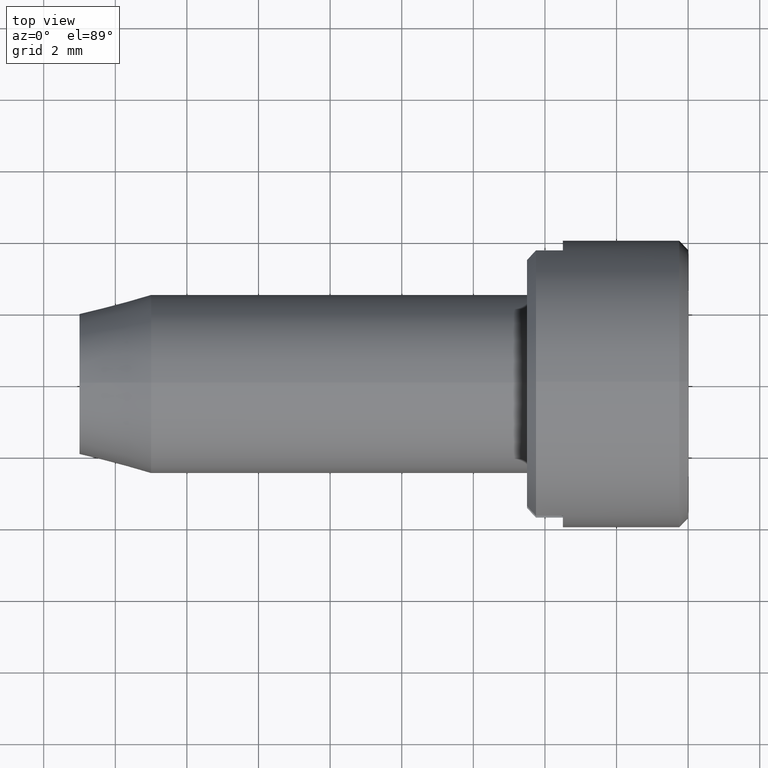
[diagram: clean part render]
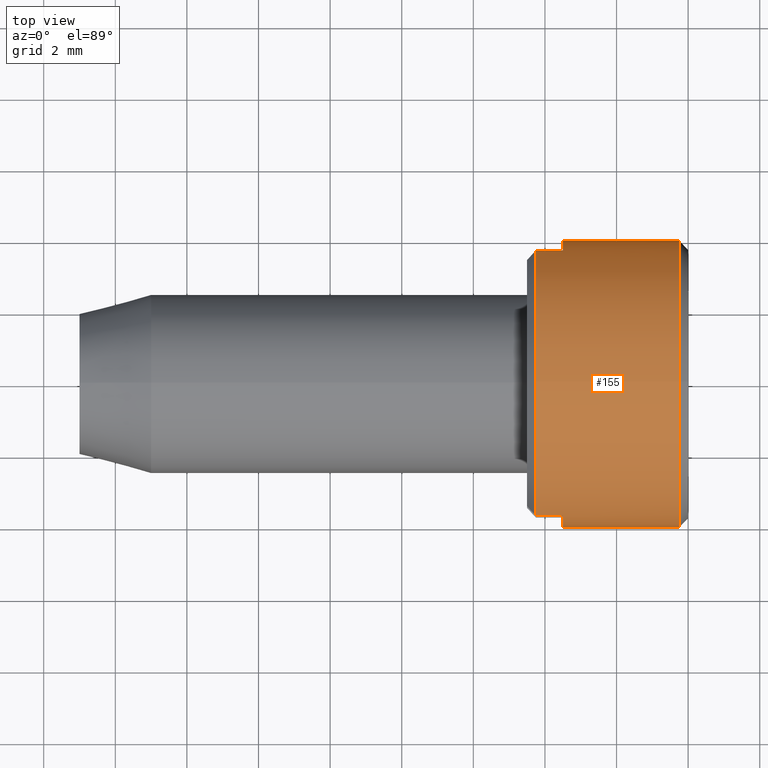
[diagram: same view with one face highlighted and labeled with its STEP entity id]
A machine part, top view. The second image highlights one B-rep face of the part: STEP entity #155.
In plain terms, the highlighted cylindrical surface (bore or boss wall) has radius 4 mm, axis along (1, 0, 0).
Its self-contained STEP definition (entity closure, byte-faithful):
#155 = ADVANCED_FACE( '', ( #280, #281 ), #282, .T. );
#280 = FACE_OUTER_BOUND( '', #414, .T. );
#281 = FACE_OUTER_BOUND( '', #415, .T. );
#282 = CYLINDRICAL_SURFACE( '', #416, 4.00000000000000 );
#414 = EDGE_LOOP( '', ( #565 ) );
#415 = EDGE_LOOP( '', ( #566, #567, #568, #569, #570, #571, #572, #573 ) );
#416 = AXIS2_PLACEMENT_3D( '', #574, #575, #576 );
#565 = ORIENTED_EDGE( '', *, *, #751, .T. );
#566 = ORIENTED_EDGE( '', *, *, #747, .F. );
#567 = ORIENTED_EDGE( '', *, *, #771, .T. );
#568 = ORIENTED_EDGE( '', *, *, #772, .F. );
#569 = ORIENTED_EDGE( '', *, *, #773, .T. );
#570 = ORIENTED_EDGE( '', *, *, #774, .F. );
#571 = ORIENTED_EDGE( '', *, *, #775, .T. );
#572 = ORIENTED_EDGE( '', *, *, #767, .F. );
#573 = ORIENTED_EDGE( '', *, *, #776, .T. );
#574 = CARTESIAN_POINT( '', ( -60.0000000000000, 0.000000000000000, 0.000000000000000 ) );
#575 = DIRECTION( '', ( 1.00000000000000, -0.000000000000000, -0.000000000000000 ) );
#576 = DIRECTION( '', ( 0.000000000000000, 0.000000000000000, 1.00000000000000 ) );
#747 = EDGE_CURVE( '', #832, #834, #835, .F. );
#751 = EDGE_CURVE( '', #840, #840, #841, .T. );
#767 = EDGE_CURVE( '', #865, #867, #868, .T. );
#771 = EDGE_CURVE( '', #832, #873, #874, .T. );
#772 = EDGE_CURVE( '', #875, #873, #876, .T. );
#773 = EDGE_CURVE( '', #875, #877, #878, .T. );
#774 = EDGE_CURVE( '', #879, #877, #880, .F. );
#775 = EDGE_CURVE( '', #879, #867, #881, .T. );
#776 = EDGE_CURVE( '', #865, #834, #882, .T. );
#832 = VERTEX_POINT( '', #957 );
#834 = VERTEX_POINT( '', #962 );
#835 = LINE( '', #963, #964 );
#840 = VERTEX_POINT( '', #970 );
#841 = CIRCLE( '', #971, 4.00000000000000 );
#865 = VERTEX_POINT( '', #997 );
#867 = VERTEX_POINT( '', #1000 );
#868 = LINE( '', #1001, #1002 );
#873 = VERTEX_POINT( '', #1011 );
#874 = CIRCLE( '', #1012, 4.00000000000000 );
#875 = VERTEX_POINT( '', #1013 );
#876 = LINE( '', #1014, #1015 );
#877 = VERTEX_POINT( '', #1016 );
#878 = CIRCLE( '', #1017, 4.00000000000000 );
#879 = VERTEX_POINT( '', #1018 );
#880 = LINE( '', #1019, #1020 );
#881 = CIRCLE( '', #1021, 4.00000000000000 );
#882 = CIRCLE( '', #1022, 4.00000000000000 );
#957 = CARTESIAN_POINT( '', ( -4.25000000000000, 3.70809924354784, 1.50000000000000 ) );
#962 = CARTESIAN_POINT( '', ( -3.50000000000000, 3.70809924354784, 1.50000000000000 ) );
#963 = CARTESIAN_POINT( '', ( -60.0000000000000, 3.70809924354784, 1.50000000000000 ) );
#964 = VECTOR( '', #1100, 1000.00000000000 );
#970 = CARTESIAN_POINT( '', ( -0.250000000000000, 0.000000000000000, 4.00000000000000 ) );
#971 = AXIS2_PLACEMENT_3D( '', #1105, #1106, #1107 );
#997 = CARTESIAN_POINT( '', ( -3.50000000000000, 3.70809924354783, -1.50000000000000 ) );
#1000 = CARTESIAN_POINT( '', ( -4.25000000000000, 3.70809924354783, -1.50000000000000 ) );
#1001 = CARTESIAN_POINT( '', ( -60.0000000000000, 3.70809924354783, -1.50000000000000 ) );
#1002 = VECTOR( '', #1132, 1000.00000000000 );
#1011 = CARTESIAN_POINT( '', ( -4.25000000000000, -3.70809924354784, 1.50000000000000 ) );
#1012 = AXIS2_PLACEMENT_3D( '', #1134, #1135, #1136 );
#1013 = CARTESIAN_POINT( '', ( -3.50000000000000, -3.70809924354784, 1.50000000000000 ) );
#1014 = CARTESIAN_POINT( '', ( -60.0000000000000, -3.70809924354784, 1.50000000000000 ) );
#1015 = VECTOR( '', #1137, 1000.00000000000 );
#1016 = CARTESIAN_POINT( '', ( -3.50000000000000, -3.70809924354783, -1.50000000000000 ) );
#1017 = AXIS2_PLACEMENT_3D( '', #1138, #1139, #1140 );
#1018 = CARTESIAN_POINT( '', ( -4.25000000000000, -3.70809924354783, -1.50000000000000 ) );
#1019 = CARTESIAN_POINT( '', ( -60.0000000000000, -3.70809924354783, -1.50000000000000 ) );
#1020 = VECTOR( '', #1141, 1000.00000000000 );
#1021 = AXIS2_PLACEMENT_3D( '', #1142, #1143, #1144 );
#1022 = AXIS2_PLACEMENT_3D( '', #1145, #1146, #1147 );
#1100 = DIRECTION( '', ( -1.00000000000000, 0.000000000000000, 0.000000000000000 ) );
#1105 = CARTESIAN_POINT( '', ( -0.250000000000000, 0.000000000000000, 0.000000000000000 ) );
#1106 = DIRECTION( '', ( -1.00000000000000, 0.000000000000000, 0.000000000000000 ) );
#1107 = DIRECTION( '', ( 0.000000000000000, 0.000000000000000, 1.00000000000000 ) );
#1132 = DIRECTION( '', ( -1.00000000000000, 0.000000000000000, 0.000000000000000 ) );
#1134 = CARTESIAN_POINT( '', ( -4.25000000000000, 0.000000000000000, 0.000000000000000 ) );
#1135 = DIRECTION( '', ( 1.00000000000000, 0.000000000000000, 0.000000000000000 ) );
#1136 = DIRECTION( '', ( 0.000000000000000, 0.000000000000000, -1.00000000000000 ) );
#1137 = DIRECTION( '', ( -1.00000000000000, 0.000000000000000, 0.000000000000000 ) );
#1138 = CARTESIAN_POINT( '', ( -3.50000000000000, 0.000000000000000, 0.000000000000000 ) );
#1139 = DIRECTION( '', ( 1.00000000000000, 0.000000000000000, 0.000000000000000 ) );
#1140 = DIRECTION( '', ( 0.000000000000000, 0.000000000000000, -1.00000000000000 ) );
#1141 = DIRECTION( '', ( -1.00000000000000, 0.000000000000000, 0.000000000000000 ) );
#1142 = CARTESIAN_POINT( '', ( -4.25000000000000, 0.000000000000000, 0.000000000000000 ) );
#1143 = DIRECTION( '', ( 1.00000000000000, 0.000000000000000, 0.000000000000000 ) );
#1144 = DIRECTION( '', ( 0.000000000000000, 0.000000000000000, -1.00000000000000 ) );
#1145 = CARTESIAN_POINT( '', ( -3.50000000000000, 0.000000000000000, 0.000000000000000 ) );
#1146 = DIRECTION( '', ( 1.00000000000000, 0.000000000000000, 0.000000000000000 ) );
#1147 = DIRECTION( '', ( 0.000000000000000, 0.000000000000000, -1.00000000000000 ) );